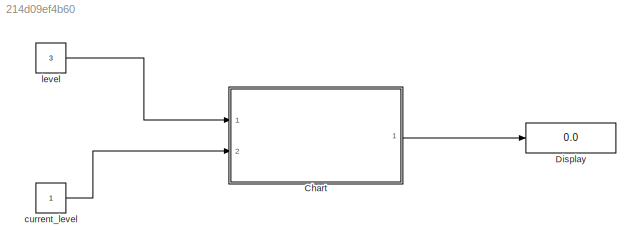
MODEL slx_214d09ef4b60
KIND model
CONFIG AbsTol = auto
CONFIG EnableMultiTasking = off
CONFIG FixedStep = auto
CONFIG MaxStep = auto
CONFIG MinStep = auto
CONFIG RelTol = 1e-3
CONFIG SampleTimeConstraint = Unconstrained
CONFIG SolverName = VariableStepAuto
CONFIG StartTime = 0.0
CONFIG StopTime = 10.0
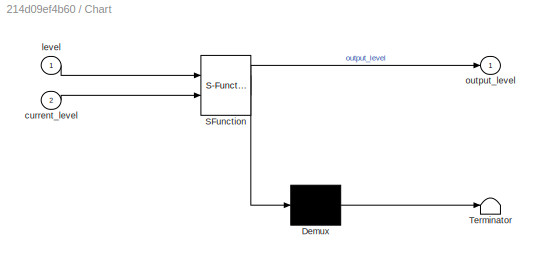
BLOCK [SubSystem] Chart
  ErrorFcn = Stateflow.Translate.translate
  PermitHierarchicalResolution = ExplicitOnly
  Ports = [2, 1]
  RequestExecContextInheritance = off
  SFBlockType = Chart
  TreatAsAtomicUnit = on
BLOCK [Demux] Chart/ Demux 
  Outputs = 1
  Ports = [1, 1]
BLOCK [S-Function] Chart/ SFunction 
  EnableBusSupport = on
  FunctionName = sf_sfun
  PortCounts = [2 2]
  Ports = [2, 2]
  SFcnIsStateOwnerBlock = off
  SFunctionDeploymentMode = off
  Tag = Stateflow S-Function 3
BLOCK [Terminator] Chart/ Terminator 
BLOCK [Inport] Chart/current_level
  Port = 2
BLOCK [Inport] Chart/level
BLOCK [Outport] Chart/output_level
BLOCK [Display] Display
  Decimation = 1
  Ports = [1]
BLOCK [Constant] current_level
BLOCK [Constant] level
  Value = 3
LINE Chart:1 -> Display:1
LINE current_level:1 -> Chart:2
LINE level:1 -> Chart:1
CHART Chart states=5 transitions=6
  STATE_LABEL 'current_l = LevelUP(des_l, current_l)'
  STATE_LABEL 'SCRIPT:\nfunction current_l = LevelUP(des_l, current_l)\nwhile des_l ~= current_l\n    current_l = current_l + 1;\nend\n\n    \n\n \n'
  STATE_LABEL 'current_l = LevelDOWN(des_l, current_l)'
  STATE_LABEL 'SCRIPT:\nfunction current_l = LevelDOWN(des_l, current_l)\nwhile des_l ~= current_l\n    current_l= current_l-1;\nend\n'
  STATE_LABEL 'REST\nentry:\n'
  STATE_LABEL 'UP\nentry:\ndes_level = level;\noutput_level = LevelUP(des_level, current_level);\nduring:\nexit:'
  STATE_LABEL 'DOWN\nentry:\ndes_level = level;\noutput_level = LevelDOWN(des_level, current_level);\nduring:\nexit:\n'
CHART  states=0 transitions=0
